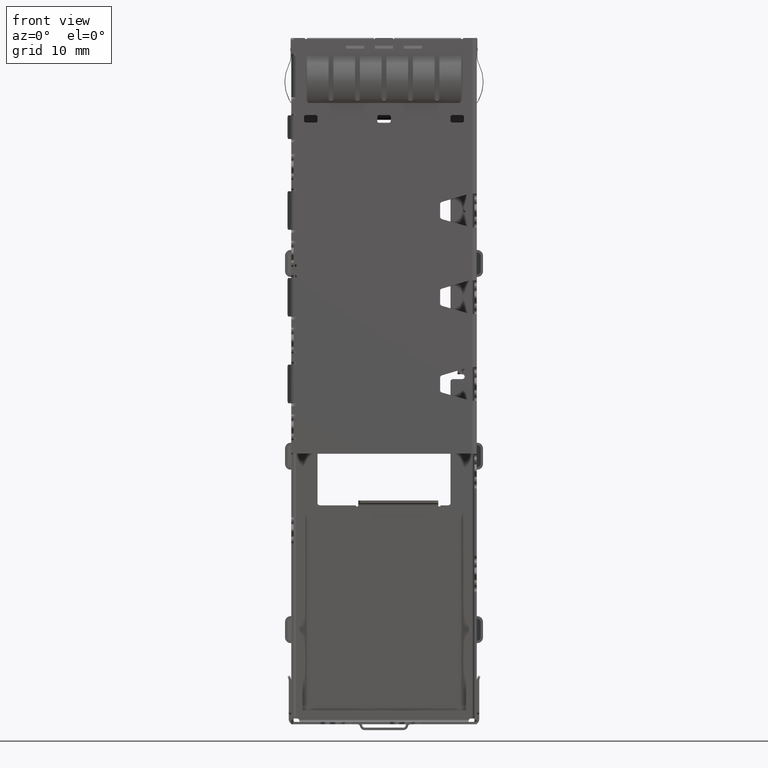
[diagram: clean part render]
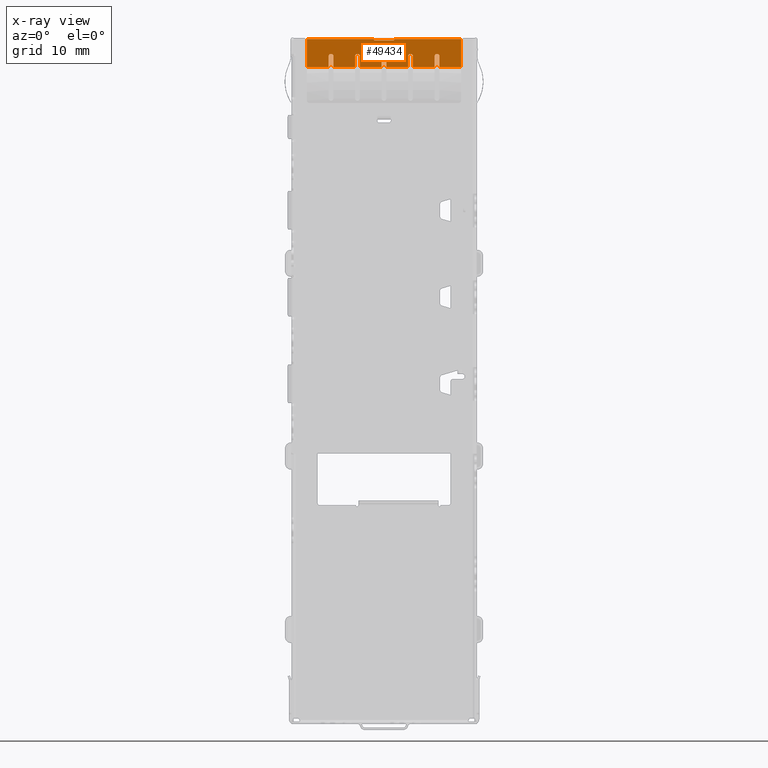
[diagram: x-ray — body ghosted, one internal face saturated and labeled with its STEP entity id]
A machine part, front view, then the same camera in x-ray: the body is ghosted and one INTERNAL B-rep face — a face not visible from any outside direction — is saturated and labeled: STEP entity #49434.
In plain terms, the highlighted planar face has unit normal (0, 1, 0).
Its self-contained STEP definition (entity closure, byte-faithful):
#593 = DIRECTION ( 'NONE',  ( -1.000000000000000000, 0.0000000000000000000, 0.0000000000000000000 ) ) ;
#744 = DIRECTION ( 'NONE',  ( 1.000000000000000000, 0.0000000000000000000, 5.325512019471149997E-35 ) ) ;
#859 = CARTESIAN_POINT ( 'NONE',  ( 5.250000000000000000, -0.3099999999999999978, -3.000000000000000000 ) ) ;
#917 = CARTESIAN_POINT ( 'NONE',  ( 3.469446951954404627E-15, -0.3099999999999999978, -1.603628330588459994 ) ) ;
#934 = EDGE_CURVE ( 'NONE', #9365, #30014, #29677, .T. ) ;
#1211 = ORIENTED_EDGE ( 'NONE', *, *, #66219, .F. ) ;
#1313 = DIRECTION ( 'NONE',  ( 0.0000000000000000000, -1.301042606982605321E-15, 1.000000000000000000 ) ) ;
#1400 = CARTESIAN_POINT ( 'NONE',  ( 8.000000000000000000, -0.3099999999999999978, -0.05999999999999760386 ) ) ;
#1587 = CARTESIAN_POINT ( 'NONE',  ( 8.000000000000000000, -0.3099999999999999978, -0.05999999999999760386 ) ) ;
#1589 = DIRECTION ( 'NONE',  ( 0.0000000000000000000, -1.301042606982605321E-15, 1.000000000000000000 ) ) ;
#2056 = CARTESIAN_POINT ( 'NONE',  ( -2.750000000000000000, -0.3099999999999999978, -1.603628330588459994 ) ) ;
#2301 = CARTESIAN_POINT ( 'NONE',  ( 3.000000000000000000, -0.3099999999999999978, -3.000000000000000000 ) ) ;
#2388 = CARTESIAN_POINT ( 'NONE',  ( -0.9499999999999999556, -0.3099999999999999978, -0.2000000000000000111 ) ) ;
#2419 = VERTEX_POINT ( 'NONE', #42142 ) ;
#2633 = VERTEX_POINT ( 'NONE', #917 ) ;
#3043 = VERTEX_POINT ( 'NONE', #57129 ) ;
#3127 = DIRECTION ( 'NONE',  ( 0.0000000000000000000, 1.000000000000000000, 1.301042606982610054E-15 ) ) ;
#3707 = VERTEX_POINT ( 'NONE', #58819 ) ;
#4045 = ORIENTED_EDGE ( 'NONE', *, *, #43073, .F. ) ;
#4864 = EDGE_CURVE ( 'NONE', #8296, #55125, #52523, .T. ) ;
#5550 = DIRECTION ( 'NONE',  ( 0.0000000000000000000, -1.301042606982605321E-15, 1.000000000000000000 ) ) ;
#7207 = LINE ( 'NONE', #50213, #48914 ) ;
#7924 = DIRECTION ( 'NONE',  ( 0.0000000000000000000, -1.301042606982605321E-15, 1.000000000000000000 ) ) ;
#8038 = ORIENTED_EDGE ( 'NONE', *, *, #32002, .T. ) ;
#8157 = VERTEX_POINT ( 'NONE', #1587 ) ;
#8296 = VERTEX_POINT ( 'NONE', #24132 ) ;
#8480 = EDGE_CURVE ( 'NONE', #29402, #60334, #16842, .T. ) ;
#8481 = DIRECTION ( 'NONE',  ( 0.0000000000000000000, -1.301042606982605321E-15, 1.000000000000000000 ) ) ;
#8924 = LINE ( 'NONE', #21996, #51550 ) ;
#9119 = VERTEX_POINT ( 'NONE', #2056 ) ;
#9255 = VECTOR ( 'NONE', #64097, 1000.000000000000000 ) ;
#9306 = VERTEX_POINT ( 'NONE', #19994 ) ;
#9365 = VERTEX_POINT ( 'NONE', #24652 ) ;
#9678 = VERTEX_POINT ( 'NONE', #45636 ) ;
#9843 = LINE ( 'NONE', #28246, #28974 ) ;
#9888 = CARTESIAN_POINT ( 'NONE',  ( -5.250000000000000000, -0.3099999999999925038, -6.953628330588459860 ) ) ;
#10026 = DIRECTION ( 'NONE',  ( 0.0000000000000000000, -1.301042606982605321E-15, 1.000000000000000000 ) ) ;
#10592 = AXIS2_PLACEMENT_3D ( 'NONE', #17798, #33611, #1313 ) ;
#10749 = ORIENTED_EDGE ( 'NONE', *, *, #37295, .T. ) ;
#11368 = VERTEX_POINT ( 'NONE', #46235 ) ;
#11415 = EDGE_CURVE ( 'NONE', #35671, #9306, #63561, .T. ) ;
#11727 = LINE ( 'NONE', #9888, #9255 ) ;
#12052 = DIRECTION ( 'NONE',  ( 0.0000000000000000000, 1.000000000000000000, 1.301042606982603940E-15 ) ) ;
#12167 = DIRECTION ( 'NONE',  ( -1.000000000000000000, 0.0000000000000000000, 0.0000000000000000000 ) ) ;
#12181 = ORIENTED_EDGE ( 'NONE', *, *, #52225, .F. ) ;
#13733 = EDGE_CURVE ( 'NONE', #19152, #9678, #13868, .T. ) ;
#13868 = LINE ( 'NONE', #24897, #64061 ) ;
#14308 = VECTOR ( 'NONE', #24987, 1000.000000000000000 ) ;
#15233 = DIRECTION ( 'NONE',  ( 0.0000000000000000000, -1.301042606982605321E-15, 1.000000000000000000 ) ) ;
#15299 = DIRECTION ( 'NONE',  ( 2.551063935260009998E-16, -1.243643668439254042E-15, 1.000000000000000000 ) ) ;
#15456 = CARTESIAN_POINT ( 'NONE',  ( -3.000000000000000000, -0.3099999999999925038, -6.953628330588459860 ) ) ;
#15608 = LINE ( 'NONE', #19044, #54945 ) ;
#16415 = CARTESIAN_POINT ( 'NONE',  ( 8.000000000000000000, -0.3099999999999999978, -3.000000000000000000 ) ) ;
#16661 = VECTOR ( 'NONE', #66126, 1000.000000000000000 ) ;
#16726 = CARTESIAN_POINT ( 'NONE',  ( 2.750000000000000000, -0.3099999999999999978, -1.853628330588464879 ) ) ;
#16842 = LINE ( 'NONE', #58902, #62883 ) ;
#16908 = CARTESIAN_POINT ( 'NONE',  ( -5.750000000000000000, -0.3099999999999925038, -6.953628330588459860 ) ) ;
#17046 = CIRCLE ( 'NONE', #46705, 0.2500000000000000000 ) ;
#17208 = AXIS2_PLACEMENT_3D ( 'NONE', #60230, #55511, #1589 ) ;
#17403 = EDGE_CURVE ( 'NONE', #51980, #35671, #9843, .T. ) ;
#17798 = CARTESIAN_POINT ( 'NONE',  ( -2.750000000000000000, -0.3099999999999999978, -1.853628330588464879 ) ) ;
#17911 = AXIS2_PLACEMENT_3D ( 'NONE', #30525, #3127, #8481 ) ;
#18030 = DIRECTION ( 'NONE',  ( -5.102127870520019996E-16, 1.243643668439256211E-15, -1.000000000000000000 ) ) ;
#18572 = VERTEX_POINT ( 'NONE', #23895 ) ;
#19044 = CARTESIAN_POINT ( 'NONE',  ( -1.050000000000000044, -0.3099999999999999978, -0.05999999999999760386 ) ) ;
#19095 = AXIS2_PLACEMENT_3D ( 'NONE', #16726, #63974, #5550 ) ;
#19099 = DIRECTION ( 'NONE',  ( -1.700709290173339916E-16, 1.243643668439254042E-15, -1.000000000000000000 ) ) ;
#19152 = VERTEX_POINT ( 'NONE', #25559 ) ;
#19650 = CARTESIAN_POINT ( 'NONE',  ( -0.2500000000000000000, -0.3099999999999925038, -6.953628330588459860 ) ) ;
#19994 = CARTESIAN_POINT ( 'NONE',  ( 5.500000000000000000, -0.3099999999999999978, -1.603628330588464879 ) ) ;
#20765 = ORIENTED_EDGE ( 'NONE', *, *, #43525, .F. ) ;
#20863 = EDGE_CURVE ( 'NONE', #40320, #18572, #58723, .T. ) ;
#21218 = ORIENTED_EDGE ( 'NONE', *, *, #36624, .T. ) ;
#21235 = DIRECTION ( 'NONE',  ( 0.0000000000000000000, 1.000000000000000000, 1.301042606982610054E-15 ) ) ;
#21483 = EDGE_LOOP ( 'NONE', ( #36339, #21218, #55872, #10749, #61874, #23764, #21758, #57735, #69078, #24706, #55712, #64970, #64904, #68889, #28686, #32418, #67074, #20765, #8038, #12181, #33954, #22591, #56969, #25994, #29071, #1211, #55089, #4045, #60884, #28972, #37066, #37770, #35409, #58725, #58445 ) ) ;
#21758 = ORIENTED_EDGE ( 'NONE', *, *, #48628, .F. ) ;
#21827 = CARTESIAN_POINT ( 'NONE',  ( 8.000000000000000000, -0.3099999999999999978, -0.05999999999999760386 ) ) ;
#21845 = CARTESIAN_POINT ( 'NONE',  ( 3.000000000000000000, -0.3099999999999925038, -6.953628330588459860 ) ) ;
#21996 = CARTESIAN_POINT ( 'NONE',  ( 1.050000000000000044, -0.3099999999999999978, -0.05999999999999760386 ) ) ;
#22112 = EDGE_CURVE ( 'NONE', #3043, #3707, #30840, .T. ) ;
#22440 = EDGE_CURVE ( 'NONE', #42751, #50141, #52573, .T. ) ;
#22591 = ORIENTED_EDGE ( 'NONE', *, *, #42213, .F. ) ;
#23017 = VERTEX_POINT ( 'NONE', #68541 ) ;
#23265 = VERTEX_POINT ( 'NONE', #2301 ) ;
#23499 = DIRECTION ( 'NONE',  ( 0.0000000000000000000, -1.000000000000000000, 0.0000000000000000000 ) ) ;
#23747 = DIRECTION ( 'NONE',  ( 0.0000000000000000000, 1.000000000000000000, 1.301042606982603940E-15 ) ) ;
#23764 = ORIENTED_EDGE ( 'NONE', *, *, #58595, .T. ) ;
#23860 = CARTESIAN_POINT ( 'NONE',  ( -8.000000000000000000, -0.3099999999999999978, -0.05999999999999760386 ) ) ;
#23895 = CARTESIAN_POINT ( 'NONE',  ( -8.000000000000000000, -0.3099999999999999978, -3.000000000000000000 ) ) ;
#24132 = CARTESIAN_POINT ( 'NONE',  ( -5.750000000000000000, -0.3099999999999999978, -1.853628330588464879 ) ) ;
#24652 = CARTESIAN_POINT ( 'NONE',  ( -1.050000000000000044, -0.3099999999999999978, -0.05999999999999760386 ) ) ;
#24687 = VECTOR ( 'NONE', #68643, 1000.000000000000000 ) ;
#24706 = ORIENTED_EDGE ( 'NONE', *, *, #13733, .F. ) ;
#24897 = CARTESIAN_POINT ( 'NONE',  ( 5.750000000000000000, -0.3099999999999925038, -6.953628330588459860 ) ) ;
#24987 = DIRECTION ( 'NONE',  ( 3.401418580346680326E-16, -1.243643668439256211E-15, 1.000000000000000000 ) ) ;
#25485 = VECTOR ( 'NONE', #744, 1000.000000000000000 ) ;
#25559 = CARTESIAN_POINT ( 'NONE',  ( 5.750000000000000000, -0.3099999999999999978, -1.853628330588464879 ) ) ;
#25577 = CIRCLE ( 'NONE', #10592, 0.2500000000000000000 ) ;
#25691 = CARTESIAN_POINT ( 'NONE',  ( 1.050000000000000044, -0.3099999999999999978, -0.05999999999999760386 ) ) ;
#25749 = CIRCLE ( 'NONE', #19095, 0.2500000000000000000 ) ;
#25994 = ORIENTED_EDGE ( 'NONE', *, *, #22440, .T. ) ;
#26160 = DIRECTION ( 'NONE',  ( 5.102127870520019996E-16, -1.243643668439256211E-15, 1.000000000000000000 ) ) ;
#26750 = DIRECTION ( 'NONE',  ( 0.0000000000000000000, 1.000000000000000000, 1.301042606982603940E-15 ) ) ;
#26792 = VERTEX_POINT ( 'NONE', #2388 ) ;
#26919 = CARTESIAN_POINT ( 'NONE',  ( -2.500000000000000000, -0.3099999999999999978, -1.853628330588464879 ) ) ;
#27703 = VERTEX_POINT ( 'NONE', #26919 ) ;
#27915 = CARTESIAN_POINT ( 'NONE',  ( 8.000000000000000000, -0.3099999999999999978, -3.000000000000000000 ) ) ;
#28246 = CARTESIAN_POINT ( 'NONE',  ( 5.250000000000000000, -0.3099999999999925038, -6.953628330588459860 ) ) ;
#28353 = VERTEX_POINT ( 'NONE', #54959 ) ;
#28686 = ORIENTED_EDGE ( 'NONE', *, *, #61909, .F. ) ;
#28972 = ORIENTED_EDGE ( 'NONE', *, *, #51013, .F. ) ;
#28974 = VECTOR ( 'NONE', #49787, 1000.000000000000000 ) ;
#29071 = ORIENTED_EDGE ( 'NONE', *, *, #52121, .F. ) ;
#29402 = VERTEX_POINT ( 'NONE', #49520 ) ;
#29677 = LINE ( 'NONE', #31518, #24687 ) ;
#30014 = VERTEX_POINT ( 'NONE', #54648 ) ;
#30161 = DIRECTION ( 'NONE',  ( -1.000000000000000000, 0.0000000000000000000, 0.0000000000000000000 ) ) ;
#30269 = DIRECTION ( 'NONE',  ( 0.0000000000000000000, 0.0000000000000000000, -1.000000000000000000 ) ) ;
#30525 = CARTESIAN_POINT ( 'NONE',  ( 5.500000000000000000, -0.3099999999999999978, -1.853628330588464879 ) ) ;
#30542 = DIRECTION ( 'NONE',  ( -3.401418580346680326E-16, 1.243643668439256211E-15, -1.000000000000000000 ) ) ;
#30618 = CARTESIAN_POINT ( 'NONE',  ( 8.000000000000000000, -0.3099999999999999978, -3.000000000000000000 ) ) ;
#30840 = CIRCLE ( 'NONE', #31930, 0.1000000000000000194 ) ;
#30863 = LINE ( 'NONE', #16415, #44250 ) ;
#31084 = DIRECTION ( 'NONE',  ( 0.0000000000000000000, 1.000000000000000000, 1.301042606982603940E-15 ) ) ;
#31138 = CARTESIAN_POINT ( 'NONE',  ( 8.000000000000000000, -0.3099999999999999978, -3.000000000000000000 ) ) ;
#31518 = CARTESIAN_POINT ( 'NONE',  ( 8.000000000000000000, -0.3099999999999999978, -0.05999999999999760386 ) ) ;
#31887 = EDGE_CURVE ( 'NONE', #58084, #9678, #46972, .T. ) ;
#31930 = AXIS2_PLACEMENT_3D ( 'NONE', #67138, #67360, #30269 ) ;
#32002 = EDGE_CURVE ( 'NONE', #62353, #28353, #49470, .T. ) ;
#32418 = ORIENTED_EDGE ( 'NONE', *, *, #67168, .F. ) ;
#32464 = EDGE_CURVE ( 'NONE', #42751, #23017, #54497, .T. ) ;
#32593 = CARTESIAN_POINT ( 'NONE',  ( 8.000000000000000000, -0.3099999999999999978, -0.2000000000000000111 ) ) ;
#32832 = DIRECTION ( 'NONE',  ( -1.000000000000000000, 0.0000000000000000000, 0.0000000000000000000 ) ) ;
#33109 = LINE ( 'NONE', #23860, #54163 ) ;
#33611 = DIRECTION ( 'NONE',  ( 0.0000000000000000000, 1.000000000000000000, 1.301042606982603940E-15 ) ) ;
#33950 = VECTOR ( 'NONE', #26160, 1000.000000000000000 ) ;
#33954 = ORIENTED_EDGE ( 'NONE', *, *, #51190, .F. ) ;
#34031 = CIRCLE ( 'NONE', #46802, 0.2500000000000000000 ) ;
#34055 = CARTESIAN_POINT ( 'NONE',  ( -5.500000000000000000, -0.3099999999999999978, -1.603628330588459994 ) ) ;
#34512 = LINE ( 'NONE', #15456, #33950 ) ;
#34646 = VERTEX_POINT ( 'NONE', #57019 ) ;
#35318 = EDGE_CURVE ( 'NONE', #18572, #30014, #33109, .T. ) ;
#35409 = ORIENTED_EDGE ( 'NONE', *, *, #56040, .F. ) ;
#35671 = VERTEX_POINT ( 'NONE', #38023 ) ;
#35968 = VECTOR ( 'NONE', #30161, 1000.000000000000000 ) ;
#35979 = VERTEX_POINT ( 'NONE', #61513 ) ;
#36048 = AXIS2_PLACEMENT_3D ( 'NONE', #21827, #69134, #42615 ) ;
#36339 = ORIENTED_EDGE ( 'NONE', *, *, #934, .F. ) ;
#36404 = CARTESIAN_POINT ( 'NONE',  ( 8.000000000000000000, -0.3099999999999999978, -3.000000000000000000 ) ) ;
#36624 = EDGE_CURVE ( 'NONE', #9365, #35979, #15608, .T. ) ;
#37066 = ORIENTED_EDGE ( 'NONE', *, *, #66225, .F. ) ;
#37295 = EDGE_CURVE ( 'NONE', #26792, #3043, #50673, .T. ) ;
#37499 = EDGE_CURVE ( 'NONE', #35979, #26792, #48916, .T. ) ;
#37770 = ORIENTED_EDGE ( 'NONE', *, *, #4864, .F. ) ;
#38023 = CARTESIAN_POINT ( 'NONE',  ( 5.250000000000000000, -0.3099999999999999978, -1.853628330588464879 ) ) ;
#38282 = VECTOR ( 'NONE', #57617, 1000.000000000000000 ) ;
#38434 = EDGE_CURVE ( 'NONE', #9306, #19152, #17046, .T. ) ;
#39037 = LINE ( 'NONE', #44643, #41604 ) ;
#40320 = VERTEX_POINT ( 'NONE', #67980 ) ;
#40492 = AXIS2_PLACEMENT_3D ( 'NONE', #52451, #31084, #41872 ) ;
#41588 = DIRECTION ( 'NONE',  ( 0.0000000000000000000, 1.000000000000000000, 1.301042606982603940E-15 ) ) ;
#41604 = VECTOR ( 'NONE', #18030, 1000.000000000000000 ) ;
#41872 = DIRECTION ( 'NONE',  ( 0.0000000000000000000, -1.301042606982605321E-15, 1.000000000000000000 ) ) ;
#41896 = CARTESIAN_POINT ( 'NONE',  ( 2.500000000000000000, -0.3099999999999925038, -6.953628330588459860 ) ) ;
#42054 = CARTESIAN_POINT ( 'NONE',  ( -5.500000000000000000, -0.3099999999999999978, -1.853628330588464879 ) ) ;
#42142 = CARTESIAN_POINT ( 'NONE',  ( 0.2500000000000035527, -0.3099999999999999978, -1.853628330588464879 ) ) ;
#42213 = EDGE_CURVE ( 'NONE', #23017, #2633, #34031, .T. ) ;
#42485 = EDGE_CURVE ( 'NONE', #54996, #11368, #25749, .T. ) ;
#42615 = DIRECTION ( 'NONE',  ( -1.000000000000000000, 0.0000000000000000000, 0.0000000000000000000 ) ) ;
#42751 = VERTEX_POINT ( 'NONE', #49385 ) ;
#43073 = EDGE_CURVE ( 'NONE', #29402, #66992, #34512, .T. ) ;
#43525 = EDGE_CURVE ( 'NONE', #62353, #54996, #53761, .T. ) ;
#44250 = VECTOR ( 'NONE', #593, 1000.000000000000000 ) ;
#44253 = CARTESIAN_POINT ( 'NONE',  ( -2.750000000000000000, -0.3099999999999999978, -1.853628330588464879 ) ) ;
#44465 = DIRECTION ( 'NONE',  ( 0.0000000000000000000, -1.301042606982605321E-15, 1.000000000000000000 ) ) ;
#44643 = CARTESIAN_POINT ( 'NONE',  ( -2.500000000000000000, -0.3099999999999925038, -6.953628330588459860 ) ) ;
#45186 = VECTOR ( 'NONE', #59544, 1000.000000000000000 ) ;
#45636 = CARTESIAN_POINT ( 'NONE',  ( 5.750000000000000000, -0.3099999999999999978, -3.000000000000000000 ) ) ;
#46235 = CARTESIAN_POINT ( 'NONE',  ( 2.750000000000000000, -0.3099999999999999978, -1.603628330588459994 ) ) ;
#46260 = EDGE_CURVE ( 'NONE', #58084, #8157, #54322, .T. ) ;
#46705 = AXIS2_PLACEMENT_3D ( 'NONE', #65037, #21235, #58720 ) ;
#46802 = AXIS2_PLACEMENT_3D ( 'NONE', #61465, #23747, #7924 ) ;
#46972 = LINE ( 'NONE', #30618, #35968 ) ;
#47500 = CARTESIAN_POINT ( 'NONE',  ( -5.250000000000000000, -0.3099999999999999978, -3.000000000000000000 ) ) ;
#47866 = EDGE_CURVE ( 'NONE', #66992, #9119, #25577, .T. ) ;
#48148 = CARTESIAN_POINT ( 'NONE',  ( 2.500000000000000000, -0.3099999999999999978, -1.853628330588464879 ) ) ;
#48628 = EDGE_CURVE ( 'NONE', #8157, #59206, #7207, .T. ) ;
#48695 = VECTOR ( 'NONE', #60635, 1000.000000000000000 ) ;
#48914 = VECTOR ( 'NONE', #12167, 1000.000000000000000 ) ;
#48916 = CIRCLE ( 'NONE', #54379, 0.1000000000000000194 ) ;
#49076 = DIRECTION ( 'NONE',  ( 6.887340185423390264E-35, 3.687762491447294274E-17, 1.000000000000000000 ) ) ;
#49385 = CARTESIAN_POINT ( 'NONE',  ( -0.2499999999999970302, -0.3099999999999999978, -3.000000000000000000 ) ) ;
#49434 = ADVANCED_FACE ( 'NONE', ( #51307 ), #53195, .F. ) ;
#49470 = LINE ( 'NONE', #63912, #57044 ) ;
#49520 = CARTESIAN_POINT ( 'NONE',  ( -3.000000000000000000, -0.3099999999999999978, -3.000000000000000000 ) ) ;
#49787 = DIRECTION ( 'NONE',  ( 5.102127870520019996E-16, -1.243643668439254042E-15, 1.000000000000000000 ) ) ;
#50141 = VERTEX_POINT ( 'NONE', #64106 ) ;
#50213 = CARTESIAN_POINT ( 'NONE',  ( 8.000000000000000000, -0.3099999999999999978, -0.05999999999999760386 ) ) ;
#50673 = LINE ( 'NONE', #32593, #25485 ) ;
#50818 = CIRCLE ( 'NONE', #40492, 0.2500000000000000000 ) ;
#51013 = EDGE_CURVE ( 'NONE', #34646, #60334, #11727, .T. ) ;
#51190 = EDGE_CURVE ( 'NONE', #2633, #2419, #64392, .T. ) ;
#51307 = FACE_OUTER_BOUND ( 'NONE', #21483, .T. ) ;
#51540 = DIRECTION ( 'NONE',  ( -6.887340185423390264E-35, -3.687762491447294274E-17, -1.000000000000000000 ) ) ;
#51550 = VECTOR ( 'NONE', #49076, 1000.000000000000000 ) ;
#51980 = VERTEX_POINT ( 'NONE', #859 ) ;
#52121 = EDGE_CURVE ( 'NONE', #27703, #50141, #39037, .T. ) ;
#52225 = EDGE_CURVE ( 'NONE', #2419, #28353, #68443, .T. ) ;
#52451 = CARTESIAN_POINT ( 'NONE',  ( 2.750000000000000000, -0.3099999999999999978, -1.853628330588464879 ) ) ;
#52523 = CIRCLE ( 'NONE', #57577, 0.2500000000000000000 ) ;
#52573 = LINE ( 'NONE', #36404, #38282 ) ;
#52901 = DIRECTION ( 'NONE',  ( -1.000000000000000000, 0.0000000000000000000, 0.0000000000000000000 ) ) ;
#53195 = PLANE ( 'NONE',  #36048 ) ;
#53761 = LINE ( 'NONE', #41896, #59610 ) ;
#54163 = VECTOR ( 'NONE', #61364, 1000.000000000000000 ) ;
#54322 = LINE ( 'NONE', #1400, #16661 ) ;
#54379 = AXIS2_PLACEMENT_3D ( 'NONE', #66846, #23499, #67077 ) ;
#54497 = LINE ( 'NONE', #19650, #14308 ) ;
#54648 = CARTESIAN_POINT ( 'NONE',  ( -8.000000000000000000, -0.3099999999999999978, -0.05999999999999760386 ) ) ;
#54945 = VECTOR ( 'NONE', #51540, 1000.000000000000000 ) ;
#54959 = CARTESIAN_POINT ( 'NONE',  ( 0.2500000000000035527, -0.3099999999999999978, -3.000000000000000000 ) ) ;
#54969 = VECTOR ( 'NONE', #30542, 1000.000000000000000 ) ;
#54996 = VERTEX_POINT ( 'NONE', #48148 ) ;
#55089 = ORIENTED_EDGE ( 'NONE', *, *, #47866, .F. ) ;
#55125 = VERTEX_POINT ( 'NONE', #34055 ) ;
#55511 = DIRECTION ( 'NONE',  ( 0.0000000000000000000, 1.000000000000000000, 1.301042606982603940E-15 ) ) ;
#55712 = ORIENTED_EDGE ( 'NONE', *, *, #38434, .F. ) ;
#55872 = ORIENTED_EDGE ( 'NONE', *, *, #37499, .T. ) ;
#56017 = CIRCLE ( 'NONE', #17208, 0.2500000000000000000 ) ;
#56040 = EDGE_CURVE ( 'NONE', #40320, #8296, #57940, .T. ) ;
#56969 = ORIENTED_EDGE ( 'NONE', *, *, #32464, .F. ) ;
#57019 = CARTESIAN_POINT ( 'NONE',  ( -5.250000000000000000, -0.3099999999999999978, -1.853628330588464879 ) ) ;
#57044 = VECTOR ( 'NONE', #52901, 1000.000000000000000 ) ;
#57129 = CARTESIAN_POINT ( 'NONE',  ( 0.9499999999999999556, -0.3099999999999999978, -0.2000000000000000111 ) ) ;
#57298 = CARTESIAN_POINT ( 'NONE',  ( 0.2500000000000000000, -0.3099999999999925038, -6.953628330588459860 ) ) ;
#57391 = VERTEX_POINT ( 'NONE', #62682 ) ;
#57577 = AXIS2_PLACEMENT_3D ( 'NONE', #42054, #41588, #15233 ) ;
#57617 = DIRECTION ( 'NONE',  ( -1.000000000000000000, 0.0000000000000000000, 0.0000000000000000000 ) ) ;
#57735 = ORIENTED_EDGE ( 'NONE', *, *, #46260, .F. ) ;
#57840 = VECTOR ( 'NONE', #60746, 1000.000000000000000 ) ;
#57940 = LINE ( 'NONE', #16908, #48695 ) ;
#58084 = VERTEX_POINT ( 'NONE', #31138 ) ;
#58278 = CARTESIAN_POINT ( 'NONE',  ( 2.500000000000000000, -0.3099999999999999978, -3.000000000000000000 ) ) ;
#58445 = ORIENTED_EDGE ( 'NONE', *, *, #35318, .T. ) ;
#58595 = EDGE_CURVE ( 'NONE', #3707, #59206, #8924, .T. ) ;
#58720 = DIRECTION ( 'NONE',  ( 0.0000000000000000000, -1.301042606982605321E-15, 1.000000000000000000 ) ) ;
#58723 = LINE ( 'NONE', #27915, #57840 ) ;
#58725 = ORIENTED_EDGE ( 'NONE', *, *, #20863, .T. ) ;
#58819 = CARTESIAN_POINT ( 'NONE',  ( 1.050000000000000044, -0.3099999999999999978, -0.1000000000000030032 ) ) ;
#58902 = CARTESIAN_POINT ( 'NONE',  ( 8.000000000000000000, -0.3099999999999999978, -3.000000000000000000 ) ) ;
#59206 = VERTEX_POINT ( 'NONE', #25691 ) ;
#59544 = DIRECTION ( 'NONE',  ( -2.551063935260009998E-16, 1.243643668439254042E-15, -1.000000000000000000 ) ) ;
#59610 = VECTOR ( 'NONE', #15299, 1000.000000000000000 ) ;
#60230 = CARTESIAN_POINT ( 'NONE',  ( -5.500000000000000000, -0.3099999999999999978, -1.853628330588464879 ) ) ;
#60334 = VERTEX_POINT ( 'NONE', #47500 ) ;
#60635 = DIRECTION ( 'NONE',  ( 5.102127870520019996E-16, -1.243643668439256211E-15, 1.000000000000000000 ) ) ;
#60746 = DIRECTION ( 'NONE',  ( -1.000000000000000000, 0.0000000000000000000, 0.0000000000000000000 ) ) ;
#60884 = ORIENTED_EDGE ( 'NONE', *, *, #8480, .T. ) ;
#61364 = DIRECTION ( 'NONE',  ( 0.0000000000000000000, 3.687762491447294274E-17, 1.000000000000000000 ) ) ;
#61465 = CARTESIAN_POINT ( 'NONE',  ( 3.469446951954404627E-15, -0.3099999999999999978, -1.853628330588464879 ) ) ;
#61513 = CARTESIAN_POINT ( 'NONE',  ( -1.050000000000000044, -0.3099999999999999978, -0.1000000000000030032 ) ) ;
#61874 = ORIENTED_EDGE ( 'NONE', *, *, #22112, .T. ) ;
#61909 = EDGE_CURVE ( 'NONE', #57391, #23265, #65422, .T. ) ;
#62353 = VERTEX_POINT ( 'NONE', #58278 ) ;
#62521 = EDGE_CURVE ( 'NONE', #51980, #23265, #30863, .T. ) ;
#62682 = CARTESIAN_POINT ( 'NONE',  ( 3.000000000000000000, -0.3099999999999999978, -1.853628330588464879 ) ) ;
#62883 = VECTOR ( 'NONE', #32832, 1000.000000000000000 ) ;
#63561 = CIRCLE ( 'NONE', #17911, 0.2500000000000000000 ) ;
#63777 = CARTESIAN_POINT ( 'NONE',  ( 3.469446951954404627E-15, -0.3099999999999999978, -1.853628330588464879 ) ) ;
#63912 = CARTESIAN_POINT ( 'NONE',  ( 8.000000000000000000, -0.3099999999999999978, -3.000000000000000000 ) ) ;
#63974 = DIRECTION ( 'NONE',  ( 0.0000000000000000000, 1.000000000000000000, 1.301042606982603940E-15 ) ) ;
#64061 = VECTOR ( 'NONE', #19099, 1000.000000000000000 ) ;
#64097 = DIRECTION ( 'NONE',  ( -5.102127870520019996E-16, 1.243643668439256211E-15, -1.000000000000000000 ) ) ;
#64106 = CARTESIAN_POINT ( 'NONE',  ( -2.500000000000000000, -0.3099999999999999978, -3.000000000000000000 ) ) ;
#64392 = CIRCLE ( 'NONE', #68977, 0.2500000000000000000 ) ;
#64904 = ORIENTED_EDGE ( 'NONE', *, *, #17403, .F. ) ;
#64970 = ORIENTED_EDGE ( 'NONE', *, *, #11415, .F. ) ;
#65037 = CARTESIAN_POINT ( 'NONE',  ( 5.500000000000000000, -0.3099999999999999978, -1.853628330588464879 ) ) ;
#65422 = LINE ( 'NONE', #21845, #45186 ) ;
#66126 = DIRECTION ( 'NONE',  ( 0.0000000000000000000, 3.687762491447294274E-17, 1.000000000000000000 ) ) ;
#66219 = EDGE_CURVE ( 'NONE', #9119, #27703, #66942, .T. ) ;
#66225 = EDGE_CURVE ( 'NONE', #55125, #34646, #56017, .T. ) ;
#66846 = CARTESIAN_POINT ( 'NONE',  ( -0.9499999999999999556, -0.3099999999999999978, -0.1000000000000030032 ) ) ;
#66942 = CIRCLE ( 'NONE', #68777, 0.2500000000000000000 ) ;
#66992 = VERTEX_POINT ( 'NONE', #67717 ) ;
#67074 = ORIENTED_EDGE ( 'NONE', *, *, #42485, .F. ) ;
#67077 = DIRECTION ( 'NONE',  ( 0.0000000000000000000, 0.0000000000000000000, -1.000000000000000000 ) ) ;
#67138 = CARTESIAN_POINT ( 'NONE',  ( 0.9499999999999999556, -0.3099999999999999978, -0.1000000000000030032 ) ) ;
#67168 = EDGE_CURVE ( 'NONE', #11368, #57391, #50818, .T. ) ;
#67360 = DIRECTION ( 'NONE',  ( 0.0000000000000000000, -1.000000000000000000, 0.0000000000000000000 ) ) ;
#67717 = CARTESIAN_POINT ( 'NONE',  ( -3.000000000000000000, -0.3099999999999999978, -1.853628330588464879 ) ) ;
#67980 = CARTESIAN_POINT ( 'NONE',  ( -5.750000000000000000, -0.3099999999999999978, -3.000000000000000000 ) ) ;
#68443 = LINE ( 'NONE', #57298, #54969 ) ;
#68541 = CARTESIAN_POINT ( 'NONE',  ( -0.2499999999999970302, -0.3099999999999999978, -1.853628330588464879 ) ) ;
#68643 = DIRECTION ( 'NONE',  ( -1.000000000000000000, 0.0000000000000000000, 0.0000000000000000000 ) ) ;
#68777 = AXIS2_PLACEMENT_3D ( 'NONE', #44253, #12052, #44465 ) ;
#68889 = ORIENTED_EDGE ( 'NONE', *, *, #62521, .T. ) ;
#68977 = AXIS2_PLACEMENT_3D ( 'NONE', #63777, #26750, #10026 ) ;
#69078 = ORIENTED_EDGE ( 'NONE', *, *, #31887, .T. ) ;
#69134 = DIRECTION ( 'NONE',  ( 0.0000000000000000000, -1.000000000000000000, 3.687762491447294274E-17 ) ) ;